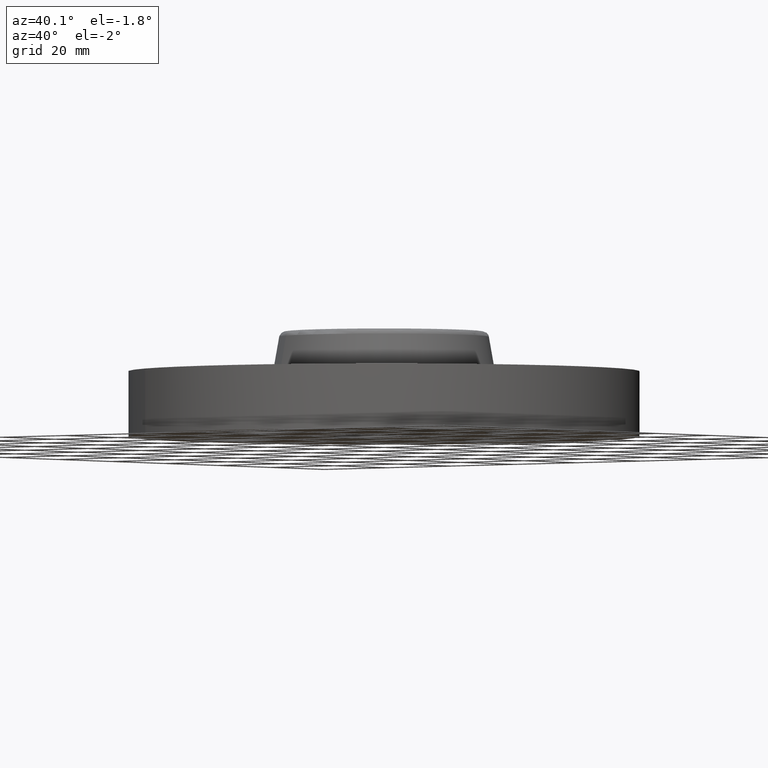
[diagram: clean part render]
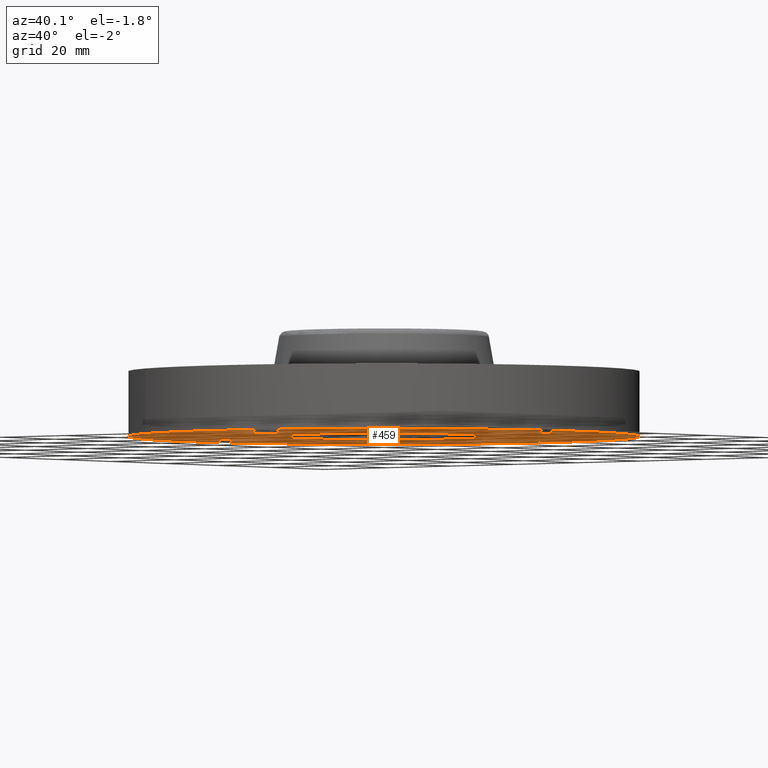
[diagram: same view with one face highlighted and labeled with its STEP entity id]
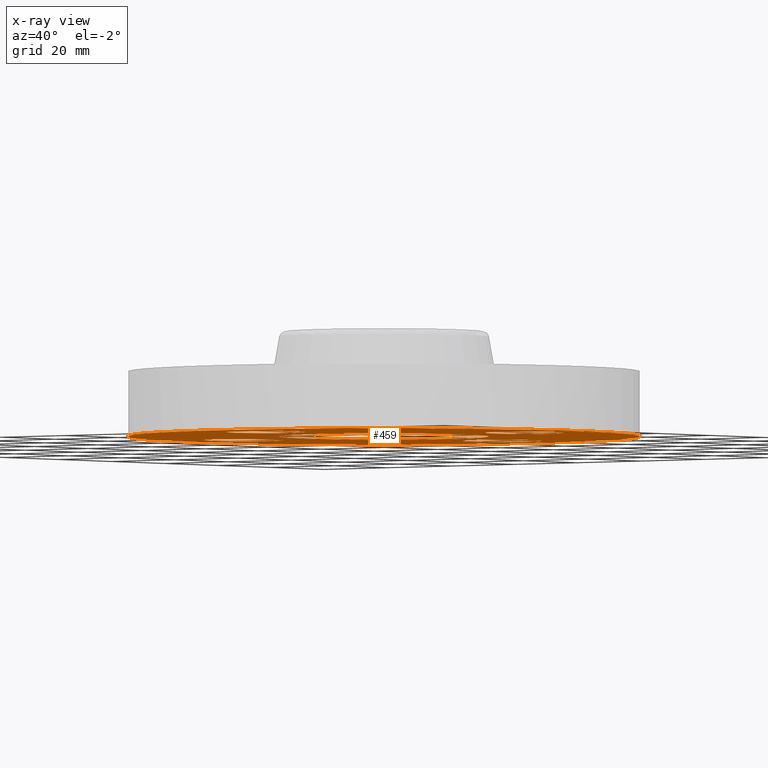
[diagram: x-ray of the same camera — body ghosted, the highlighted face saturated]
A machine part, auxiliary view. The second image highlights one B-rep face of the part: STEP entity #459.
The next image is the same camera in x-ray: the body ghosted, the highlighted face saturated — about 0% of this face is hidden behind the body in this view.
In plain terms, the highlighted planar face has unit normal (0, 0, -1).
Its self-contained STEP definition (entity closure, byte-faithful):
#271=AXIS2_PLACEMENT_3D('Plane Axis2P3D',#268,#269,#270) ;
#275=AXIS2_PLACEMENT_3D('Circle Axis2P3D',#273,#274,$) ;
#284=AXIS2_PLACEMENT_3D('Circle Axis2P3D',#282,#283,$) ;
#367=AXIS2_PLACEMENT_3D('Circle Axis2P3D',#365,#366,$) ;
#376=AXIS2_PLACEMENT_3D('Circle Axis2P3D',#374,#375,$) ;
#385=AXIS2_PLACEMENT_3D('Circle Axis2P3D',#383,#384,$) ;
#394=AXIS2_PLACEMENT_3D('Circle Axis2P3D',#392,#393,$) ;
#407=AXIS2_PLACEMENT_3D('Circle Axis2P3D',#405,#406,$) ;
#416=AXIS2_PLACEMENT_3D('Circle Axis2P3D',#414,#415,$) ;
#425=AXIS2_PLACEMENT_3D('Circle Axis2P3D',#423,#424,$) ;
#434=AXIS2_PLACEMENT_3D('Circle Axis2P3D',#432,#433,$) ;
#443=AXIS2_PLACEMENT_3D('Circle Axis2P3D',#441,#442,$) ;
#452=AXIS2_PLACEMENT_3D('Circle Axis2P3D',#450,#451,$) ;
#268=CARTESIAN_POINT('Axis2P3D Location',(0.,0.478500000002,0.)) ;
#273=CARTESIAN_POINT('Axis2P3D Location',(-2.79741234551E-016,2.81649769124E-011,0.)) ;
#277=CARTESIAN_POINT('Vertex',(-0.479425538595,-0.877582561857,0.)) ;
#279=CARTESIAN_POINT('Vertex',(0.479425538595,0.877582561913,0.)) ;
#282=CARTESIAN_POINT('Axis2P3D Location',(3.0853639853E-011,1.13096583717E-011,0.)) ;
#365=CARTESIAN_POINT('Axis2P3D Location',(-8.39223703654E-016,2.81648370418E-011,0.)) ;
#369=CARTESIAN_POINT('Vertex',(-1.16979831419,-2.14130145099,0.)) ;
#371=CARTESIAN_POINT('Vertex',(1.16979831419,2.14130145104,0.)) ;
#374=CARTESIAN_POINT('Axis2P3D Location',(3.08529404999E-011,1.13095185011E-011,0.)) ;
#383=CARTESIAN_POINT('Axis2P3D Location',(1.74999999998,-1.55002520006E-011,0.)) ;
#387=CARTESIAN_POINT('Vertex',(2.07909346074,-0.179784576945,0.)) ;
#389=CARTESIAN_POINT('Vertex',(1.42090653927,0.179784577001,0.)) ;
#392=CARTESIAN_POINT('Axis2P3D Location',(1.75,1.53531780465E-011,0.)) ;
#405=CARTESIAN_POINT('Axis2P3D Location',(3.49676543189E-017,-1.75000000002,0.)) ;
#409=CARTESIAN_POINT('Vertex',(0.179784576973,-1.42090653932,0.)) ;
#411=CARTESIAN_POINT('Vertex',(-0.179784576973,-2.07909346071,0.)) ;
#414=CARTESIAN_POINT('Axis2P3D Location',(-3.49676543189E-017,-1.75000000002,0.)) ;
#423=CARTESIAN_POINT('Axis2P3D Location',(-1.75000000003,-1.55002520006E-011,0.)) ;
#427=CARTESIAN_POINT('Vertex',(-1.42090653927,-0.179784576945,0.)) ;
#429=CARTESIAN_POINT('Vertex',(-2.07909346074,0.179784577001,0.)) ;
#432=CARTESIAN_POINT('Axis2P3D Location',(-1.75000000001,1.53531780465E-011,0.)) ;
#441=CARTESIAN_POINT('Axis2P3D Location',(-3.49676543189E-017,1.75,0.)) ;
#445=CARTESIAN_POINT('Vertex',(-0.179784576973,1.4209065393,0.)) ;
#447=CARTESIAN_POINT('Vertex',(0.179784576973,2.0790934607,0.)) ;
#450=CARTESIAN_POINT('Axis2P3D Location',(3.49676543189E-017,1.75,0.)) ;
#269=DIRECTION('Axis2P3D Direction',(0.,0.,-0.0393700787402)) ;
#270=DIRECTION('Axis2P3D XDirection',(0.0393700787402,0.,0.)) ;
#274=DIRECTION('Axis2P3D Direction',(0.,0.,-0.0393700787402)) ;
#283=DIRECTION('Axis2P3D Direction',(0.,0.,-0.0393700787402)) ;
#366=DIRECTION('Axis2P3D Direction',(0.,0.,-0.0393700787402)) ;
#375=DIRECTION('Axis2P3D Direction',(0.,0.,-0.0393700787402)) ;
#384=DIRECTION('Axis2P3D Direction',(0.,0.,-0.0393700787402)) ;
#393=DIRECTION('Axis2P3D Direction',(0.,0.,-0.0393700787402)) ;
#406=DIRECTION('Axis2P3D Direction',(0.,0.,-0.0393700787402)) ;
#415=DIRECTION('Axis2P3D Direction',(0.,0.,-0.0393700787402)) ;
#424=DIRECTION('Axis2P3D Direction',(0.,0.,-0.0393700787402)) ;
#433=DIRECTION('Axis2P3D Direction',(0.,0.,-0.0393700787402)) ;
#442=DIRECTION('Axis2P3D Direction',(0.,0.,-0.0393700787402)) ;
#451=DIRECTION('Axis2P3D Direction',(0.,0.,-0.0393700787402)) ;
#380=ORIENTED_EDGE('',*,*,#373,.T.) ;
#381=ORIENTED_EDGE('',*,*,#378,.T.) ;
#398=ORIENTED_EDGE('',*,*,#391,.F.) ;
#399=ORIENTED_EDGE('',*,*,#396,.F.) ;
#402=ORIENTED_EDGE('',*,*,#286,.F.) ;
#403=ORIENTED_EDGE('',*,*,#281,.F.) ;
#420=ORIENTED_EDGE('',*,*,#413,.F.) ;
#421=ORIENTED_EDGE('',*,*,#418,.F.) ;
#438=ORIENTED_EDGE('',*,*,#431,.F.) ;
#439=ORIENTED_EDGE('',*,*,#436,.F.) ;
#456=ORIENTED_EDGE('',*,*,#449,.F.) ;
#457=ORIENTED_EDGE('',*,*,#454,.F.) ;
#400=FACE_BOUND('',#397,.T.) ;
#404=FACE_BOUND('',#401,.T.) ;
#422=FACE_BOUND('',#419,.T.) ;
#440=FACE_BOUND('',#437,.T.) ;
#458=FACE_BOUND('',#455,.T.) ;
#459=ADVANCED_FACE('PartBody',(#382,#400,#404,#422,#440,#458),#272,.T.) ;
#276=CIRCLE('generated circle',#275,0.999999999991) ;
#285=CIRCLE('generated circle',#284,0.999999999991) ;
#368=CIRCLE('generated circle',#367,2.44) ;
#377=CIRCLE('generated circle',#376,2.44) ;
#386=CIRCLE('generated circle',#385,0.375000000021) ;
#395=CIRCLE('generated circle',#394,0.375000000021) ;
#408=CIRCLE('generated circle',#407,0.374999999988) ;
#417=CIRCLE('generated circle',#416,0.374999999988) ;
#426=CIRCLE('generated circle',#425,0.375000000021) ;
#435=CIRCLE('generated circle',#434,0.375000000021) ;
#444=CIRCLE('generated circle',#443,0.374999999988) ;
#453=CIRCLE('generated circle',#452,0.374999999988) ;
#281=EDGE_CURVE('',#278,#280,#276,.T.) ;
#286=EDGE_CURVE('',#280,#278,#285,.T.) ;
#373=EDGE_CURVE('',#370,#372,#368,.T.) ;
#378=EDGE_CURVE('',#372,#370,#377,.T.) ;
#391=EDGE_CURVE('',#388,#390,#386,.T.) ;
#396=EDGE_CURVE('',#390,#388,#395,.T.) ;
#413=EDGE_CURVE('',#410,#412,#408,.T.) ;
#418=EDGE_CURVE('',#412,#410,#417,.T.) ;
#431=EDGE_CURVE('',#428,#430,#426,.T.) ;
#436=EDGE_CURVE('',#430,#428,#435,.T.) ;
#449=EDGE_CURVE('',#446,#448,#444,.T.) ;
#454=EDGE_CURVE('',#448,#446,#453,.T.) ;
#379=EDGE_LOOP('',(#380,#381)) ;
#397=EDGE_LOOP('',(#398,#399)) ;
#401=EDGE_LOOP('',(#402,#403)) ;
#419=EDGE_LOOP('',(#420,#421)) ;
#437=EDGE_LOOP('',(#438,#439)) ;
#455=EDGE_LOOP('',(#456,#457)) ;
#382=FACE_OUTER_BOUND('',#379,.T.) ;
#272=PLANE('',#271) ;
#278=VERTEX_POINT('',#277) ;
#280=VERTEX_POINT('',#279) ;
#370=VERTEX_POINT('',#369) ;
#372=VERTEX_POINT('',#371) ;
#388=VERTEX_POINT('',#387) ;
#390=VERTEX_POINT('',#389) ;
#410=VERTEX_POINT('',#409) ;
#412=VERTEX_POINT('',#411) ;
#428=VERTEX_POINT('',#427) ;
#430=VERTEX_POINT('',#429) ;
#446=VERTEX_POINT('',#445) ;
#448=VERTEX_POINT('',#447) ;